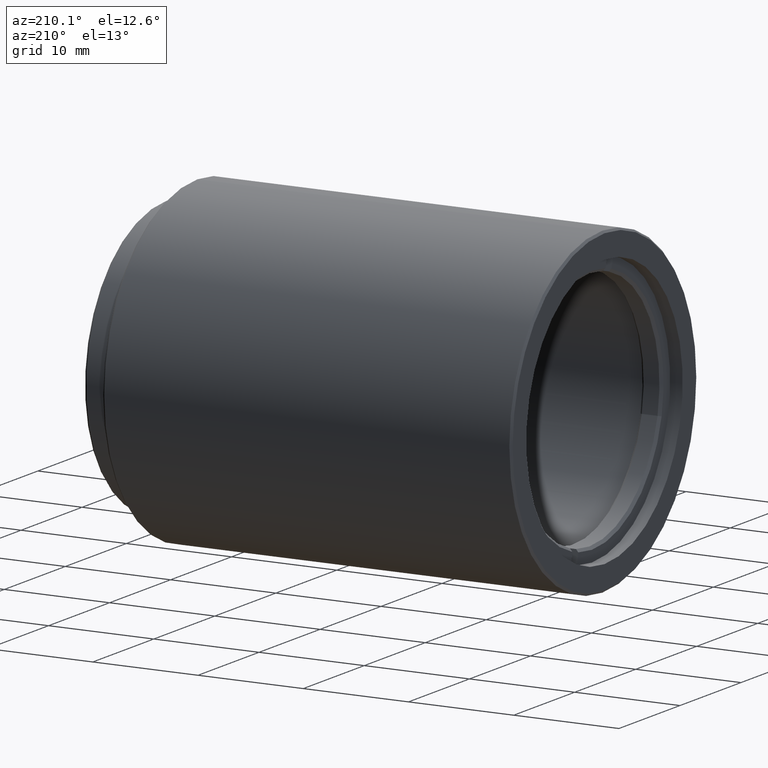
[diagram: clean part render]
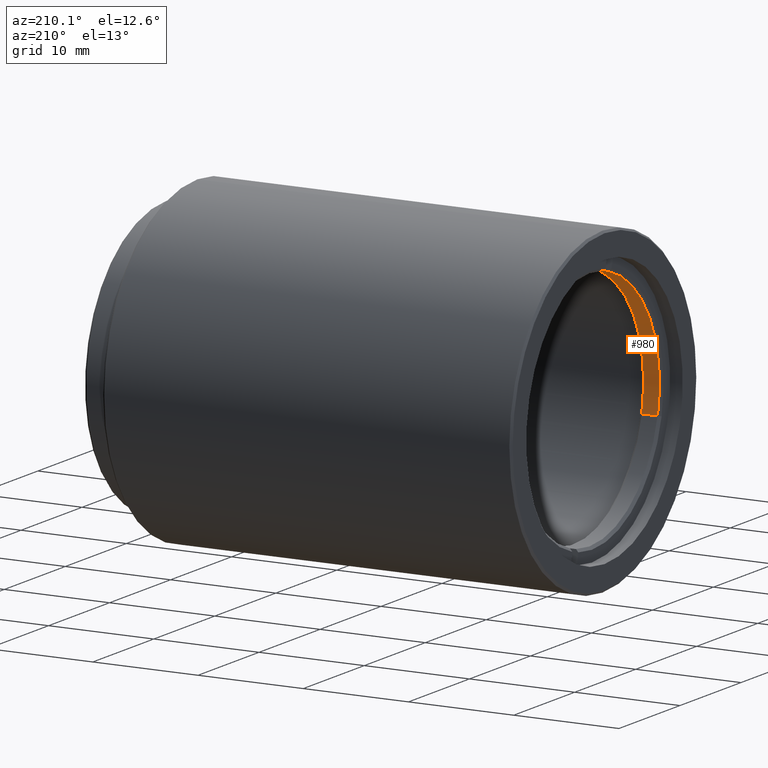
[diagram: same view with one face highlighted and labeled with its STEP entity id]
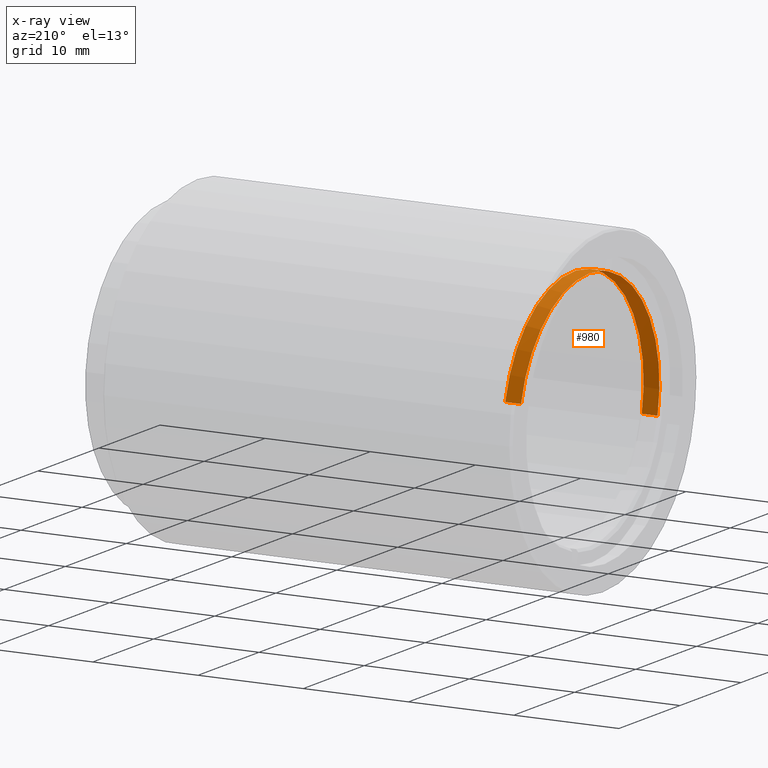
[diagram: x-ray of the same camera — body ghosted, the highlighted face saturated]
A machine part, auxiliary view. The second image highlights one B-rep face of the part: STEP entity #980.
The next image is the same camera in x-ray: the body ghosted, the highlighted face saturated — about 0% of this face is hidden behind the body in this view.
In plain terms, the highlighted cylindrical surface (partial cylindrical patch) has radius 11.5045 mm, axis along (1, 0, 0).
Its self-contained STEP definition (entity closure, byte-faithful):
#9 = EDGE_CURVE ( 'NONE', #293, #531, #660, .T. ) ;
#47 = DIRECTION ( 'NONE',  ( 1.000000000000000000, 2.105809034732735045E-31, 4.356099237842255014E-33 ) ) ;
#53 = CARTESIAN_POINT ( 'NONE',  ( -34.18143387617175222, -31.30107721851309321, -2.661077674950880212 ) ) ;
#55 = FACE_OUTER_BOUND ( 'NONE', #1354, .T. ) ;
#125 = VERTEX_POINT ( 'NONE', #338 ) ;
#148 = CIRCLE ( 'NONE', #658, 11.50449999999998774 ) ;
#178 = VERTEX_POINT ( 'NONE', #1441 ) ;
#210 = VECTOR ( 'NONE', #1578, 1000.000000000000000 ) ;
#226 = CARTESIAN_POINT ( 'NONE',  ( -34.18143387617175222, -23.25357502687139544, 11.06627636636099510 ) ) ;
#227 = AXIS2_PLACEMENT_3D ( 'NONE', #280, #47, #1153 ) ;
#266 = CIRCLE ( 'NONE', #896, 11.50449999999998774 ) ;
#273 = VERTEX_POINT ( 'NONE', #1239 ) ;
#274 = VERTEX_POINT ( 'NONE', #365 ) ;
#276 = ORIENTED_EDGE ( 'NONE', *, *, #1325, .F. ) ;
#279 = EDGE_CURVE ( 'NONE', #178, #293, #1577, .T. ) ;
#280 = CARTESIAN_POINT ( 'NONE',  ( -32.43143387617175222, -20.10857142857142676, -9.486769009248163798E-16 ) ) ;
#293 = VERTEX_POINT ( 'NONE', #1124 ) ;
#298 = CARTESIAN_POINT ( 'NONE',  ( -34.18143387617175222, -22.28069434627322210, 11.29758391340353363 ) ) ;
#338 = CARTESIAN_POINT ( 'NONE',  ( -33.48143387617174938, -23.25357502687139544, 11.06627636636099510 ) ) ;
#339 = CYLINDRICAL_SURFACE ( 'NONE', #1262, 11.50449999999998951 ) ;
#346 = CIRCLE ( 'NONE', #849, 11.50449999999998774 ) ;
#365 = CARTESIAN_POINT ( 'NONE',  ( -33.93143387617175932, -22.28069434627322210, 11.29758391340353363 ) ) ;
#367 = EDGE_CURVE ( 'NONE', #125, #940, #346, .T. ) ;
#419 = VECTOR ( 'NONE', #421, 1000.000000000000000 ) ;
#421 = DIRECTION ( 'NONE',  ( 1.000000000000000000, 2.105809034732735045E-31, 4.356099237842255014E-33 ) ) ;
#492 = ORIENTED_EDGE ( 'NONE', *, *, #714, .F. ) ;
#510 = CARTESIAN_POINT ( 'NONE',  ( -33.93143387617175932, -31.30107721851309321, -2.661077674950881544 ) ) ;
#523 = DIRECTION ( 'NONE',  ( -1.000000000000000000, -2.105809034732735045E-31, -4.356099237842255014E-33 ) ) ;
#531 = VERTEX_POINT ( 'NONE', #782 ) ;
#543 = LINE ( 'NONE', #298, #419 ) ;
#561 = EDGE_CURVE ( 'NONE', #274, #940, #543, .T. ) ;
#584 = ORIENTED_EDGE ( 'NONE', *, *, #667, .T. ) ;
#589 = ORIENTED_EDGE ( 'NONE', *, *, #9, .T. ) ;
#626 = ORIENTED_EDGE ( 'NONE', *, *, #367, .T. ) ;
#640 = CARTESIAN_POINT ( 'NONE',  ( -33.93143387617175932, -20.10857142857142676, -9.486769009248159853E-16 ) ) ;
#657 = CARTESIAN_POINT ( 'NONE',  ( -33.48143387617175648, -22.28069434627322210, 11.29758391340353363 ) ) ;
#658 = AXIS2_PLACEMENT_3D ( 'NONE', #640, #779, #1034 ) ;
#660 = CIRCLE ( 'NONE', #227, 11.50449999999998774 ) ;
#667 = EDGE_CURVE ( 'NONE', #809, #273, #266, .T. ) ;
#683 = VECTOR ( 'NONE', #1017, 1000.000000000000000 ) ;
#687 = DIRECTION ( 'NONE',  ( 1.000000000000000000, 2.105809034732735045E-31, 4.356099237842255014E-33 ) ) ;
#693 = DIRECTION ( 'NONE',  ( 0.000000000000000000, 0.9728806805981727868, 0.2313075470425383917 ) ) ;
#714 = EDGE_CURVE ( 'NONE', #125, #273, #1265, .T. ) ;
#779 = DIRECTION ( 'NONE',  ( -1.000000000000000000, -2.105809034732735045E-31, -4.356099237842255014E-33 ) ) ;
#782 = CARTESIAN_POINT ( 'NONE',  ( -32.43143387617175222, -31.30107721851309321, -2.661077674950880212 ) ) ;
#809 = VERTEX_POINT ( 'NONE', #510 ) ;
#834 = CARTESIAN_POINT ( 'NONE',  ( -33.93143387617175932, -20.10857142857142676, -9.486769009248159853E-16 ) ) ;
#849 = AXIS2_PLACEMENT_3D ( 'NONE', #1369, #523, #1257 ) ;
#896 = AXIS2_PLACEMENT_3D ( 'NONE', #834, #1340, #987 ) ;
#940 = VERTEX_POINT ( 'NONE', #657 ) ;
#980 = ADVANCED_FACE ( 'NONE', ( #55 ), #339, .F. ) ;
#987 = DIRECTION ( 'NONE',  ( 0.000000000000000000, -0.9728806805981727868, -0.2313075470425384472 ) ) ;
#1017 = DIRECTION ( 'NONE',  ( 1.000000000000000000, 2.105809034732735045E-31, 4.356099237842255014E-33 ) ) ;
#1034 = DIRECTION ( 'NONE',  ( 0.000000000000000000, -0.9728806805981727868, -0.2313075470425384472 ) ) ;
#1110 = DIRECTION ( 'NONE',  ( 1.000000000000000000, 2.105809034732735045E-31, 4.356099237842255014E-33 ) ) ;
#1124 = CARTESIAN_POINT ( 'NONE',  ( -32.43143387617175222, -8.916065638629758539, 2.661077674950879768 ) ) ;
#1153 = DIRECTION ( 'NONE',  ( 0.000000000000000000, -0.9728806805981727868, -0.2313075470425384472 ) ) ;
#1154 = ORIENTED_EDGE ( 'NONE', *, *, #279, .T. ) ;
#1239 = CARTESIAN_POINT ( 'NONE',  ( -33.93143387617175222, -23.25357502687139544, 11.06627636636099510 ) ) ;
#1257 = DIRECTION ( 'NONE',  ( 0.000000000000000000, -0.9728806805981727868, -0.2313075470425384472 ) ) ;
#1260 = CARTESIAN_POINT ( 'NONE',  ( -34.18143387617175222, -20.10857142857142676, -9.486769009248165770E-16 ) ) ;
#1261 = LINE ( 'NONE', #53, #683 ) ;
#1262 = AXIS2_PLACEMENT_3D ( 'NONE', #1260, #687, #693 ) ;
#1265 = LINE ( 'NONE', #226, #210 ) ;
#1325 = EDGE_CURVE ( 'NONE', #809, #531, #1261, .T. ) ;
#1340 = DIRECTION ( 'NONE',  ( -1.000000000000000000, -2.105809034732735045E-31, -4.356099237842255014E-33 ) ) ;
#1354 = EDGE_LOOP ( 'NONE', ( #276, #584, #492, #626, #1406, #1387, #1154, #589 ) ) ;
#1369 = CARTESIAN_POINT ( 'NONE',  ( -33.48143387617175648, -20.10857142857142676, -9.486769009248157881E-16 ) ) ;
#1387 = ORIENTED_EDGE ( 'NONE', *, *, #1433, .T. ) ;
#1406 = ORIENTED_EDGE ( 'NONE', *, *, #561, .F. ) ;
#1433 = EDGE_CURVE ( 'NONE', #274, #178, #148, .T. ) ;
#1441 = CARTESIAN_POINT ( 'NONE',  ( -33.93143387617175932, -8.916065638629749657, 2.661077674950881988 ) ) ;
#1444 = VECTOR ( 'NONE', #1110, 1000.000000000000000 ) ;
#1478 = CARTESIAN_POINT ( 'NONE',  ( -34.18143387617175222, -8.916065638629758539, 2.661077674950879768 ) ) ;
#1577 = LINE ( 'NONE', #1478, #1444 ) ;
#1578 = DIRECTION ( 'NONE',  ( -1.000000000000000000, -2.105809034732735045E-31, -4.356099237842255014E-33 ) ) ;